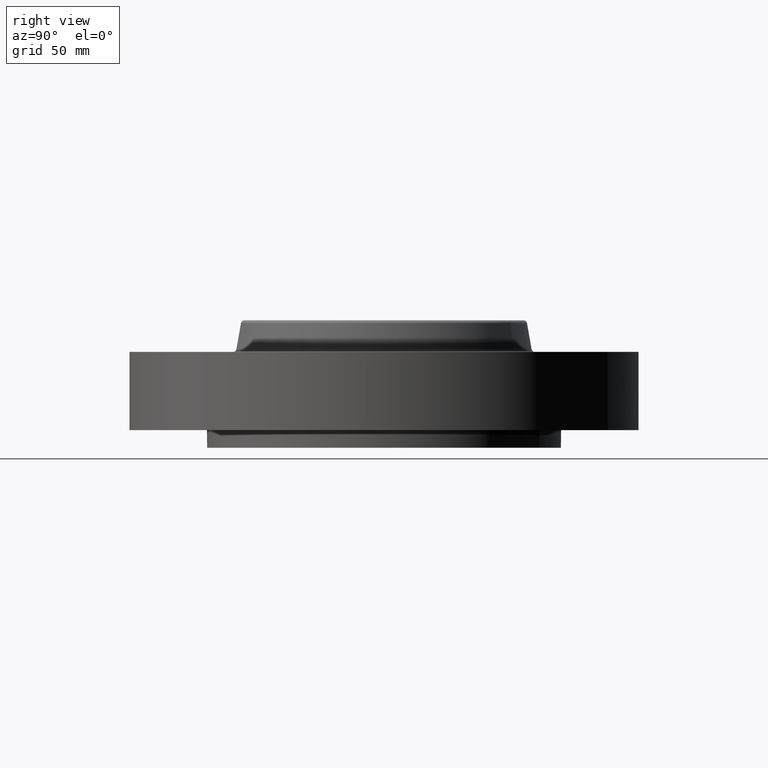
[diagram: clean part render]
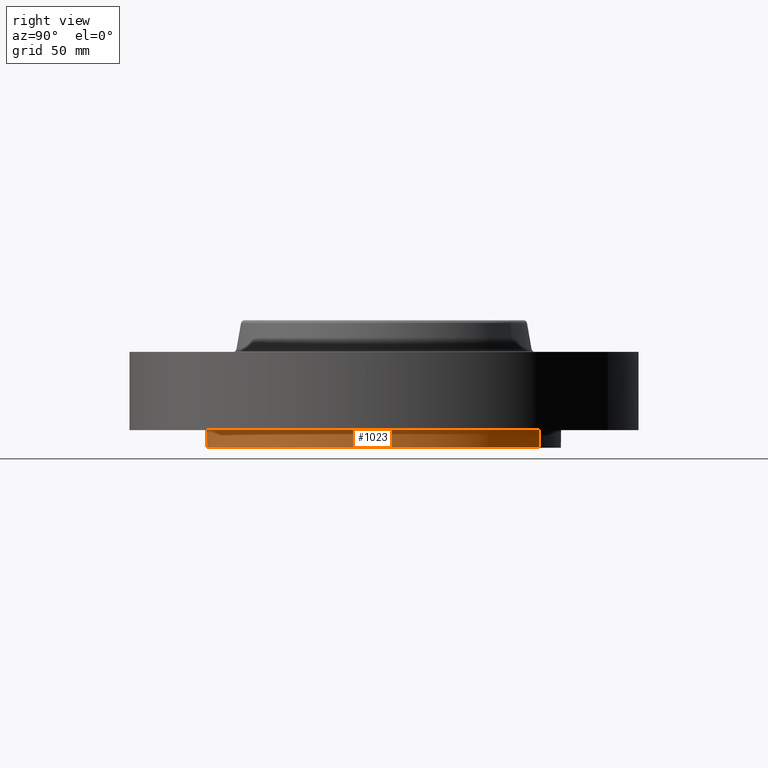
[diagram: same view with one face highlighted and labeled with its STEP entity id]
A machine part, right view. The second image highlights one B-rep face of the part: STEP entity #1023.
In plain terms, the highlighted cylindrical surface (partial cylindrical patch) has radius 79.375 mm, axis along (0, 0, -1).
Its self-contained STEP definition (entity closure, byte-faithful):
#373=AXIS2_PLACEMENT_3D('Circle Axis2P3D',#371,#372,$) ;
#888=AXIS2_PLACEMENT_3D('Circle Axis2P3D',#886,#887,$) ;
#893=AXIS2_PLACEMENT_3D('Circle Axis2P3D',#891,#892,$) ;
#948=AXIS2_PLACEMENT_3D('Circle Axis2P3D',#946,#947,$) ;
#953=AXIS2_PLACEMENT_3D('Circle Axis2P3D',#951,#952,$) ;
#958=AXIS2_PLACEMENT_3D('Circle Axis2P3D',#956,#957,$) ;
#1001=AXIS2_PLACEMENT_3D('Cylinder Axis2P3D',#998,#999,#1000) ;
#371=CARTESIAN_POINT('Axis2P3D Location',(0.,0.,-0.312500000001)) ;
#375=CARTESIAN_POINT('Vertex',(1.49820480814,2.74244550592,-0.312500000001)) ;
#377=CARTESIAN_POINT('Vertex',(-1.49820480814,-2.74244550592,-0.312500000001)) ;
#426=CARTESIAN_POINT('Vertex',(3.12500000001,0.,0.)) ;
#621=CARTESIAN_POINT('Vertex',(2.20970869122,2.20970869122,0.)) ;
#686=CARTESIAN_POINT('Vertex',(2.20970869122,-2.20970869122,0.)) ;
#816=CARTESIAN_POINT('Vertex',(8.29897616581E-017,-3.12500000001,0.)) ;
#886=CARTESIAN_POINT('Axis2P3D Location',(0.,0.,0.)) ;
#891=CARTESIAN_POINT('Axis2P3D Location',(0.,0.,0.)) ;
#895=CARTESIAN_POINT('Vertex',(1.49820480814,2.74244550592,2.79741234551E-016)) ;
#943=CARTESIAN_POINT('Vertex',(-1.49820480814,-2.74244550592,2.79741234551E-016)) ;
#946=CARTESIAN_POINT('Axis2P3D Location',(0.,0.,0.)) ;
#951=CARTESIAN_POINT('Axis2P3D Location',(0.,0.,0.)) ;
#956=CARTESIAN_POINT('Axis2P3D Location',(0.,0.,0.)) ;
#998=CARTESIAN_POINT('Axis2P3D Location',(0.,0.,0.813750000003)) ;
#1003=CARTESIAN_POINT('Line Origine',(1.49820480814,2.74244550592,-0.156250000001)) ;
#1008=CARTESIAN_POINT('Line Origine',(-1.49820480814,-2.74244550592,-0.156250000001)) ;
#372=DIRECTION('Axis2P3D Direction',(0.,0.,-0.0393700787402)) ;
#887=DIRECTION('Axis2P3D Direction',(0.,0.,-0.0393700787402)) ;
#892=DIRECTION('Axis2P3D Direction',(0.,0.,-0.0393700787402)) ;
#947=DIRECTION('Axis2P3D Direction',(0.,0.,-0.0393700787402)) ;
#952=DIRECTION('Axis2P3D Direction',(0.,0.,-0.0393700787402)) ;
#957=DIRECTION('Axis2P3D Direction',(0.,0.,-0.0393700787402)) ;
#999=DIRECTION('Axis2P3D Direction',(0.,0.,-0.0393700787402)) ;
#1000=DIRECTION('Axis2P3D XDirection',(-0.0188750212049,-0.0345504945626,0.)) ;
#1004=DIRECTION('Vector Direction',(0.,0.,-0.0393700787402)) ;
#1009=DIRECTION('Vector Direction',(0.,0.,-0.0393700787402)) ;
#1005=VECTOR('Line Direction',#1004,0.0393700787402) ;
#1010=VECTOR('Line Direction',#1009,0.0393700787402) ;
#1014=ORIENTED_EDGE('',*,*,#379,.F.) ;
#1015=ORIENTED_EDGE('',*,*,#1007,.T.) ;
#1016=ORIENTED_EDGE('',*,*,#897,.T.) ;
#1017=ORIENTED_EDGE('',*,*,#890,.T.) ;
#1018=ORIENTED_EDGE('',*,*,#960,.T.) ;
#1019=ORIENTED_EDGE('',*,*,#955,.T.) ;
#1020=ORIENTED_EDGE('',*,*,#950,.T.) ;
#1021=ORIENTED_EDGE('',*,*,#1012,.F.) ;
#1023=ADVANCED_FACE('PartBody',(#1022),#1002,.T.) ;
#374=CIRCLE('generated circle',#373,3.12500000001) ;
#889=CIRCLE('generated circle',#888,3.12500000001) ;
#894=CIRCLE('generated circle',#893,3.12500000001) ;
#949=CIRCLE('generated circle',#948,3.12500000001) ;
#954=CIRCLE('generated circle',#953,3.12500000001) ;
#959=CIRCLE('generated circle',#958,3.12500000001) ;
#1002=CYLINDRICAL_SURFACE('generated cylinder',#1001,3.12500000001) ;
#379=EDGE_CURVE('',#376,#378,#374,.T.) ;
#890=EDGE_CURVE('',#622,#427,#889,.T.) ;
#897=EDGE_CURVE('',#896,#622,#894,.T.) ;
#950=EDGE_CURVE('',#817,#944,#949,.T.) ;
#955=EDGE_CURVE('',#687,#817,#954,.T.) ;
#960=EDGE_CURVE('',#427,#687,#959,.T.) ;
#1007=EDGE_CURVE('',#376,#896,#1006,.F.) ;
#1012=EDGE_CURVE('',#378,#944,#1011,.F.) ;
#1013=EDGE_LOOP('',(#1014,#1015,#1016,#1017,#1018,#1019,#1020,#1021)) ;
#1022=FACE_OUTER_BOUND('',#1013,.T.) ;
#1006=LINE('Line',#1003,#1005) ;
#1011=LINE('Line',#1008,#1010) ;
#376=VERTEX_POINT('',#375) ;
#378=VERTEX_POINT('',#377) ;
#427=VERTEX_POINT('',#426) ;
#622=VERTEX_POINT('',#621) ;
#687=VERTEX_POINT('',#686) ;
#817=VERTEX_POINT('',#816) ;
#896=VERTEX_POINT('',#895) ;
#944=VERTEX_POINT('',#943) ;